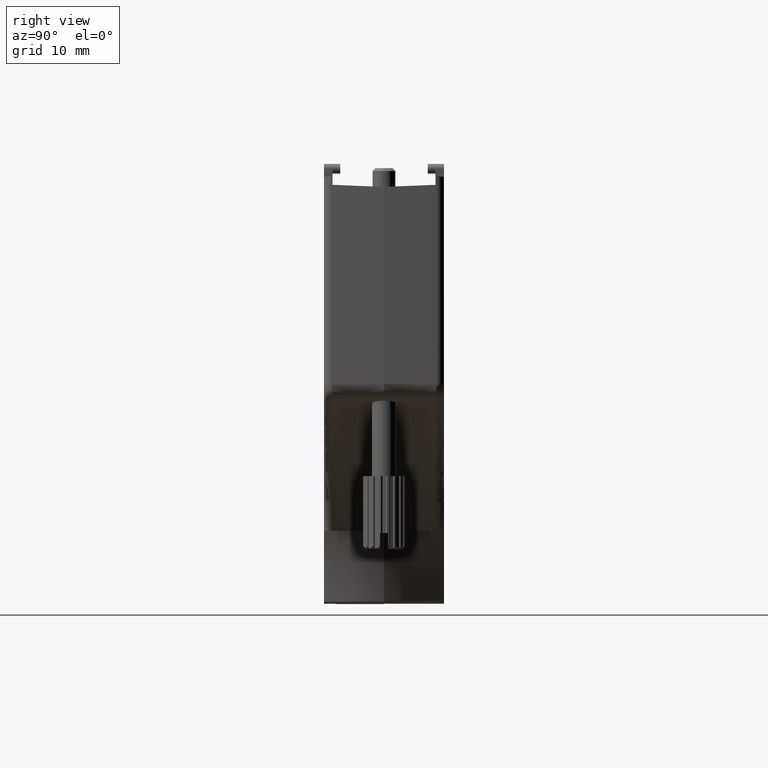
[diagram: clean part render]
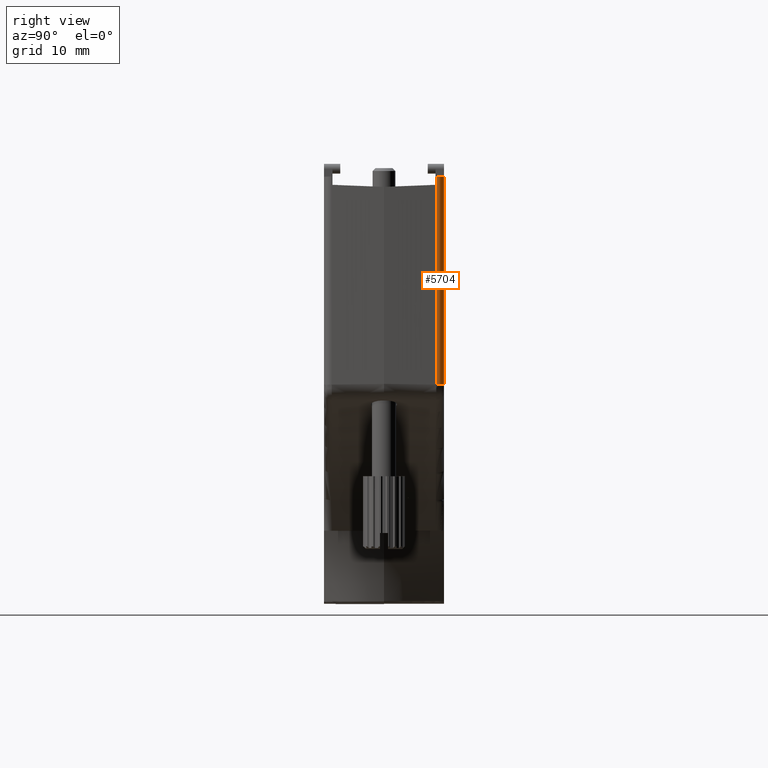
[diagram: same view with one face highlighted and labeled with its STEP entity id]
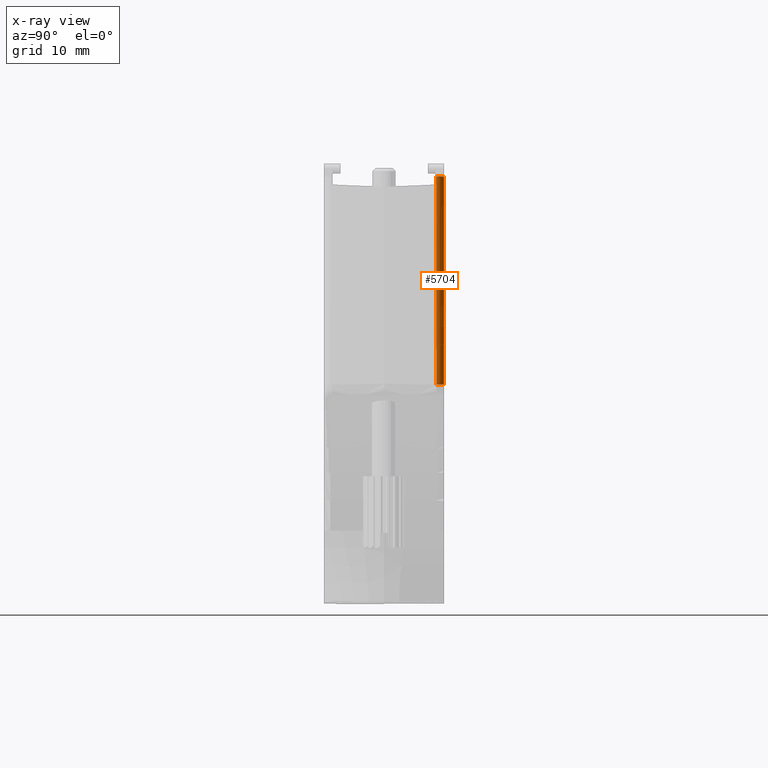
[diagram: x-ray of the same camera — body ghosted, the highlighted face saturated]
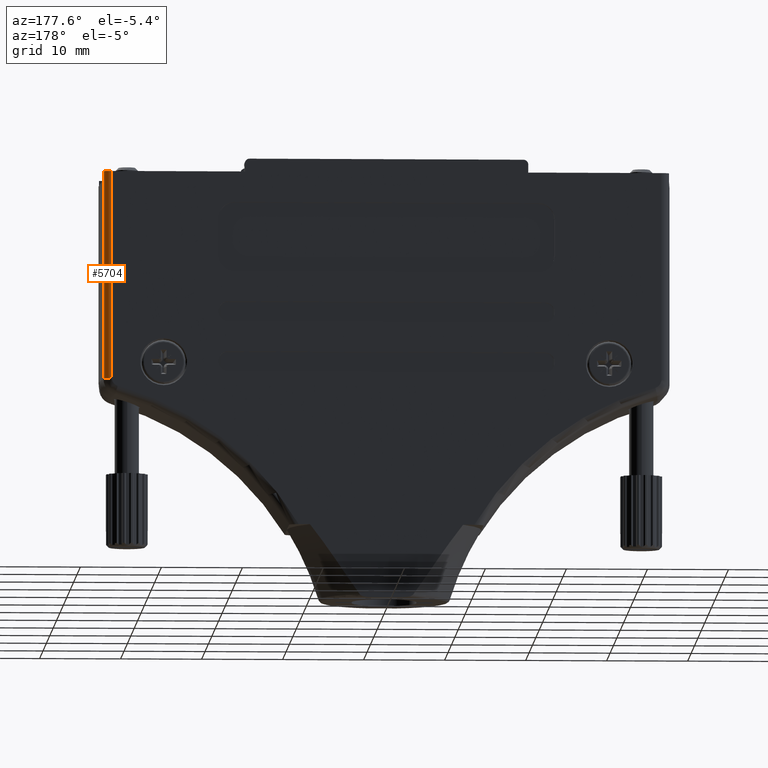
[diagram: same view with one face highlighted and labeled with its STEP entity id]
A machine part, right view. The second image highlights one B-rep face of the part: STEP entity #5704.
The next image is the same camera in x-ray: the body ghosted, the highlighted face saturated — about 0% of this face is hidden behind the body in this view.
A second angle (auxiliary view) of the same face is appended — the face is thin or edge-on in the first view.
In plain terms, the highlighted cylindrical surface (edge-blend (fillet) strip) has radius 1 mm, axis along (-0, 0, 1).
Its self-contained STEP definition (entity closure, byte-faithful):
#68 = EDGE_CURVE ( 'NONE', #16544, #11616, #18393, .T. ) ;
#813 = CYLINDRICAL_SURFACE ( 'NONE', #18364, 1.000000000000000888 ) ;
#889 = CARTESIAN_POINT ( 'NONE',  ( -34.88244765559777960, -7.013316523433498872, -0.3675523444022139596 ) ) ;
#2655 = DIRECTION ( 'NONE',  ( 0.000000000000000000, 0.000000000000000000, 1.000000000000000000 ) ) ;
#3014 = DIRECTION ( 'NONE',  ( -0.000000000000000000, -0.000000000000000000, -1.000000000000000000 ) ) ;
#5704 = ADVANCED_FACE ( 'NONE', ( #23307 ), #813, .T. ) ;
#7387 = DIRECTION ( 'NONE',  ( 0.000000000000000000, 0.000000000000000000, 1.000000000000000000 ) ) ;
#7426 = VERTEX_POINT ( 'NONE', #21325 ) ;
#8147 = EDGE_CURVE ( 'NONE', #16544, #8156, #12184, .T. ) ;
#8156 = VERTEX_POINT ( 'NONE', #12921 ) ;
#8390 = CARTESIAN_POINT ( 'NONE',  ( -33.91321786659059256, -7.400000000000000355, -0.3878175666945099520 ) ) ;
#9117 = DIRECTION ( 'NONE',  ( 1.000000000000000000, 0.000000000000000000, 0.000000000000000000 ) ) ;
#9417 = EDGE_CURVE ( 'NONE', #7426, #8156, #18137, .T. ) ;
#10969 = CARTESIAN_POINT ( 'NONE',  ( -33.91321786659060677, -6.400000000000000355, -26.02253674844186904 ) ) ;
#11616 = VERTEX_POINT ( 'NONE', #22750 ) ;
#11721 = CARTESIAN_POINT ( 'NONE',  ( -34.47496829321744372, -7.400000000000008349, -0.3878175666945105071 ) ) ;
#11939 = EDGE_LOOP ( 'NONE', ( #19085, #19661, #18443, #14983 ) ) ;
#12184 = CIRCLE ( 'NONE', #14527, 1.000000000000000888 ) ;
#12921 = CARTESIAN_POINT ( 'NONE',  ( -33.91321786659060677, -7.400000000000000355, -26.02253674844186904 ) ) ;
#13676 = EDGE_CURVE ( 'NONE', #11616, #7426, #18100, .T. ) ;
#14219 = CARTESIAN_POINT ( 'NONE',  ( -33.91321786659060677, -7.400000000000000355, 0.000000000000000000 ) ) ;
#14527 = AXIS2_PLACEMENT_3D ( 'NONE', #10969, #7387, #9117 ) ;
#14983 = ORIENTED_EDGE ( 'NONE', *, *, #13676, .F. ) ;
#16544 = VERTEX_POINT ( 'NONE', #21293 ) ;
#18100 =( BOUNDED_CURVE ( )  B_SPLINE_CURVE ( 3, ( #19582, #889, #11721, #8390 ),
 .UNSPECIFIED., .F., .F. ) 
 B_SPLINE_CURVE_WITH_KNOTS ( ( 4, 4 ),
 ( 1.623156204354729404, 3.141592653589809103 ),
 .UNSPECIFIED. ) 
 CURVE ( )  GEOMETRIC_REPRESENTATION_ITEM ( )  RATIONAL_B_SPLINE_CURVE ( ( 1.000000000000000000, 0.8169162473415220171, 0.8169162473415220171, 1.000000000000000000 ) ) 
 REPRESENTATION_ITEM ( '' )  );
#18137 = LINE ( 'NONE', #14219, #22407 ) ;
#18239 = VECTOR ( 'NONE', #21982, 1000.000000000000000 ) ;
#18364 = AXIS2_PLACEMENT_3D ( 'NONE', #19366, #2655, #21480 ) ;
#18393 = LINE ( 'NONE', #22217, #18239 ) ;
#18443 = ORIENTED_EDGE ( 'NONE', *, *, #9417, .F. ) ;
#19085 = ORIENTED_EDGE ( 'NONE', *, *, #68, .F. ) ;
#19366 = CARTESIAN_POINT ( 'NONE',  ( -33.91321786659060677, -6.400000000000000355, 4.316879966994419494E-15 ) ) ;
#19582 = CARTESIAN_POINT ( 'NONE',  ( -34.91184740134518449, -6.452335956242944981, -0.3381525986548072349 ) ) ;
#19661 = ORIENTED_EDGE ( 'NONE', *, *, #8147, .T. ) ;
#21293 = CARTESIAN_POINT ( 'NONE',  ( -34.91184740134518449, -6.452335956242944093, -26.02253674844185838 ) ) ;
#21325 = CARTESIAN_POINT ( 'NONE',  ( -33.91321786659059256, -7.400000000000000355, -0.3878175666945099520 ) ) ;
#21480 = DIRECTION ( 'NONE',  ( 1.000000000000000000, 0.000000000000000000, 0.000000000000000000 ) ) ;
#21982 = DIRECTION ( 'NONE',  ( 0.000000000000000000, 0.000000000000000000, 1.000000000000000000 ) ) ;
#22217 = CARTESIAN_POINT ( 'NONE',  ( -34.91184740134518449, -6.452335956242944093, 4.316879966994419494E-15 ) ) ;
#22407 = VECTOR ( 'NONE', #3014, 1000.000000000000000 ) ;
#22750 = CARTESIAN_POINT ( 'NONE',  ( -34.91184740134518449, -6.452335956242944981, -0.3381525986548072349 ) ) ;
#23307 = FACE_OUTER_BOUND ( 'NONE', #11939, .T. ) ;